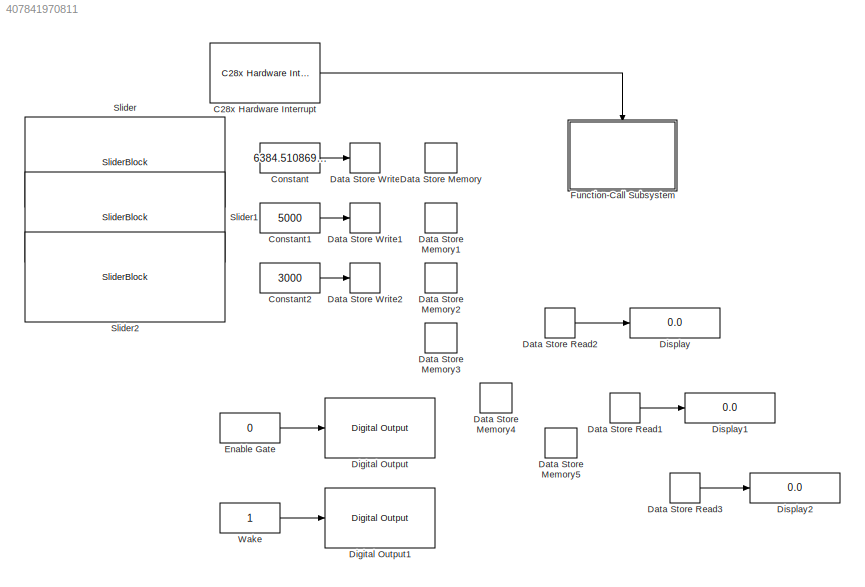
MODEL slx_407841970811
KIND model
CONFIG AbsTol = auto
CONFIG EnableMultiTasking = on
CONFIG FixedStep = auto
CONFIG MaxStep = auto
CONFIG MinStep = auto
CONFIG RelTol = 1e-3
CONFIG SampleTimeConstraint = Unconstrained
CONFIG SolverName = FixedStepDiscrete
CONFIG StartTime = 0.0
CONFIG StopTime = Inf
BLOCK [Reference] C28x Hardware Interrupt  REF=c2000lib/Scheduling/C28x Hardware Interrupt
  Ports = [0, 1]
  SourceBlock = c2000lib/Scheduling/C28x Hardware Interrupt
  SourceProductBaseCode = TIC2000
  SourceType = C28x Interrupt Block
BLOCK [Constant] Constant
  OutDataTypeStr = uint32
  Value = 6384.510869565218
BLOCK [Constant] Constant1
  OutDataTypeStr = uint32
  Value = 5000
BLOCK [Constant] Constant2
  OutDataTypeStr = uint32
  Value = 3000
BLOCK [DataStoreMemory] Data Store Memory
  OutDataTypeStr = uint32
  ReadBeforeWriteMsg = warning
  ShowAdditionalParam = off
  WriteAfterReadMsg = warning
  WriteAfterWriteMsg = warning
BLOCK [DataStoreMemory] Data Store Memory1
  DataStoreName = B
  OutDataTypeStr = uint32
  ReadBeforeWriteMsg = warning
  ShowAdditionalParam = off
  WriteAfterReadMsg = warning
  WriteAfterWriteMsg = warning
BLOCK [DataStoreMemory] Data Store Memory2
  DataStoreName = C
  OutDataTypeStr = uint32
  ReadBeforeWriteMsg = warning
  ShowAdditionalParam = off
  WriteAfterReadMsg = warning
  WriteAfterWriteMsg = warning
BLOCK [DataStoreMemory] Data Store Memory3
  DataStoreName = D
  OutDataTypeStr = uint16
  ReadBeforeWriteMsg = warning
  ShowAdditionalParam = off
  WriteAfterReadMsg = warning
  WriteAfterWriteMsg = warning
BLOCK [DataStoreMemory] Data Store Memory4
  DataStoreName = E
  OutDataTypeStr = uint16
  ReadBeforeWriteMsg = warning
  ShowAdditionalParam = off
  WriteAfterReadMsg = warning
  WriteAfterWriteMsg = warning
BLOCK [DataStoreMemory] Data Store Memory5
  DataStoreName = F
  OutDataTypeStr = uint16
  ReadBeforeWriteMsg = warning
  ShowAdditionalParam = off
  WriteAfterReadMsg = warning
  WriteAfterWriteMsg = warning
BLOCK [DataStoreRead] Data Store Read1
  DataStoreName = E
  IndexOptions = Index vector (dialog)
  Indices = 1
  OutputSizes = 1
  Ports = [0, 1]
BLOCK [DataStoreRead] Data Store Read2
  DataStoreName = D
  IndexOptions = Index vector (dialog)
  Indices = 1
  OutputSizes = 1
  Ports = [0, 1]
BLOCK [DataStoreRead] Data Store Read3
  DataStoreName = F
  IndexOptions = Index vector (dialog)
  Indices = 1
  OutputSizes = 1
  Ports = [0, 1]
BLOCK [DataStoreWrite] Data Store Write
  IndexOptions = Index vector (dialog)
  Indices = 1
  OutputSizes = 1
  Ports = [1]
BLOCK [DataStoreWrite] Data Store Write1
  DataStoreName = B
  IndexOptions = Index vector (dialog)
  Indices = 1
  OutputSizes = 1
  Ports = [1]
BLOCK [DataStoreWrite] Data Store Write2
  DataStoreName = C
  IndexOptions = Index vector (dialog)
  Indices = 1
  OutputSizes = 1
  Ports = [1]
BLOCK [Reference] Digital Output  REF=c2837xDlib/Digital Output
  Ports = [1]
  SourceBlock = c2837xDlib/Digital Output
  SourceProductBaseCode = TIC2000
  SourceType = F2837x GPIO Digital Output
  UserDataPersistent = on
BLOCK [Reference] Digital Output1  REF=c2837xDlib/Digital Output
  Ports = [1]
  SourceBlock = c2837xDlib/Digital Output
  SourceProductBaseCode = TIC2000
  SourceType = F2837x GPIO Digital Output
  UserDataPersistent = on
BLOCK [Display] Display
  Decimation = 1
  Ports = [1]
BLOCK [Display] Display1
  Decimation = 1
  Ports = [1]
BLOCK [Display] Display2
  Decimation = 1
  Ports = [1]
BLOCK [Constant] Enable Gate
  OutDataTypeStr = uint32
  Value = 0
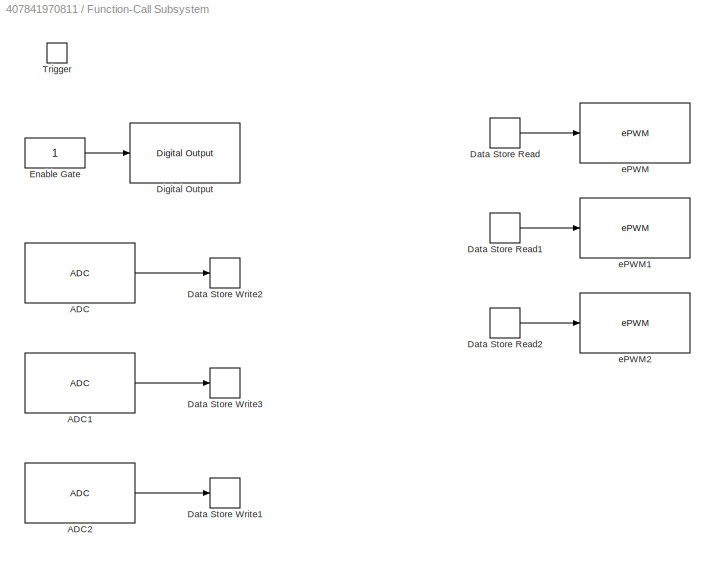
BLOCK [SubSystem] Function-Call Subsystem
  Ports = [0, 0, 0, 1]
  RequestExecContextInheritance = off
  TreatAsAtomicUnit = on
BLOCK [Reference] Function-Call Subsystem/ADC  REF=c2802xlib/ADC
  Ports = [0, 1]
  SourceBlock = c2802xlib/ADC
  SourceProductName = Embedded Coder Support Package for Texas Instruments C2000 Processors
  SourceType = ADC Type 3-5
  UserDataPersistent = on
BLOCK [Reference] Function-Call Subsystem/ADC1  REF=c2802xlib/ADC
  Ports = [0, 1]
  SourceBlock = c2802xlib/ADC
  SourceProductName = Embedded Coder Support Package for Texas Instruments C2000 Processors
  SourceType = ADC Type 3-5
  UserDataPersistent = on
BLOCK [Reference] Function-Call Subsystem/ADC2  REF=c2802xlib/ADC
  Ports = [0, 1]
  SourceBlock = c2802xlib/ADC
  SourceProductName = Embedded Coder Support Package for Texas Instruments C2000 Processors
  SourceType = ADC Type 3-5
  UserDataPersistent = on
BLOCK [DataStoreRead] Function-Call Subsystem/Data Store Read
  IndexOptions = Index vector (dialog)
  Indices = 1
  OutputSizes = 1
  Ports = [0, 1]
BLOCK [DataStoreRead] Function-Call Subsystem/Data Store Read1
  DataStoreName = B
  IndexOptions = Index vector (dialog)
  Indices = 1
  OutputSizes = 1
  Ports = [0, 1]
BLOCK [DataStoreRead] Function-Call Subsystem/Data Store Read2
  DataStoreName = C
  IndexOptions = Index vector (dialog)
  Indices = 1
  OutputSizes = 1
  Ports = [0, 1]
BLOCK [DataStoreWrite] Function-Call Subsystem/Data Store Write1
  DataStoreName = F
  IndexOptions = Index vector (dialog)
  Indices = 1
  OutputSizes = 1
  Ports = [1]
BLOCK [DataStoreWrite] Function-Call Subsystem/Data Store Write2
  DataStoreName = D
  IndexOptions = Index vector (dialog)
  Indices = 1
  OutputSizes = 1
  Ports = [1]
BLOCK [DataStoreWrite] Function-Call Subsystem/Data Store Write3
  DataStoreName = E
  IndexOptions = Index vector (dialog)
  Indices = 1
  OutputSizes = 1
  Ports = [1]
BLOCK [Reference] Function-Call Subsystem/Digital Output  REF=c2837xDlib/Digital Output
  Ports = [1]
  SourceBlock = c2837xDlib/Digital Output
  SourceProductBaseCode = TIC2000
  SourceType = F2837x GPIO Digital Output
  UserDataPersistent = on
BLOCK [Constant] Function-Call Subsystem/Enable Gate
  OutDataTypeStr = uint32
BLOCK [TriggerPort] Function-Call Subsystem/Trigger
  PortDimensions = 1
  Ports = []
  StatesWhenEnabling = held
  TriggerType = function-call
  VariantControl = Variant
BLOCK [Reference] Function-Call Subsystem/ePWM  REF=c2802xlib/ePWM
  Ports = [1]
  SourceBlock = c2802xlib/ePWM
  SourceProductName = Embedded Coder Support Package for Texas Instruments C2000 Processors
  SourceType = ePWM Type 1-4
  UserDataPersistent = on
BLOCK [Reference] Function-Call Subsystem/ePWM1  REF=c2802xlib/ePWM
  Ports = [1]
  SourceBlock = c2802xlib/ePWM
  SourceProductName = Embedded Coder Support Package for Texas Instruments C2000 Processors
  SourceType = ePWM Type 1-4
  UserDataPersistent = on
BLOCK [Reference] Function-Call Subsystem/ePWM2  REF=c2802xlib/ePWM
  Ports = [1]
  SourceBlock = c2802xlib/ePWM
  SourceProductName = Embedded Coder Support Package for Texas Instruments C2000 Processors
  SourceType = ePWM Type 1-4
  UserDataPersistent = on
BLOCK [SliderBlock] Slider
  ScaleMax = 10e3
BLOCK [SliderBlock] Slider1
  ScaleMax = 10e3
BLOCK [SliderBlock] Slider2
  ScaleMax = 10e3
BLOCK [Constant] Wake
  OutDataTypeStr = uint32
LINE C28x Hardware Interrupt:1 -> Function-Call Subsystem:trigger
LINE Constant1:1 -> Data Store Write1:1
LINE Constant2:1 -> Data Store Write2:1
LINE Constant:1 -> Data Store Write:1
LINE Data Store Read1:1 -> Display1:1
LINE Data Store Read2:1 -> Display:1
LINE Data Store Read3:1 -> Display2:1
LINE Enable Gate:1 -> Digital Output:1
LINE Function-Call Subsystem/ADC1:1 -> Function-Call Subsystem/Data Store Write3:1
LINE Function-Call Subsystem/ADC2:1 -> Function-Call Subsystem/Data Store Write1:1
LINE Function-Call Subsystem/ADC:1 -> Function-Call Subsystem/Data Store Write2:1
LINE Function-Call Subsystem/Data Store Read1:1 -> Function-Call Subsystem/ePWM1:1
LINE Function-Call Subsystem/Data Store Read2:1 -> Function-Call Subsystem/ePWM2:1
LINE Function-Call Subsystem/Data Store Read:1 -> Function-Call Subsystem/ePWM:1
LINE Function-Call Subsystem/Enable Gate:1 -> Function-Call Subsystem/Digital Output:1
LINE Wake:1 -> Digital Output1:1
